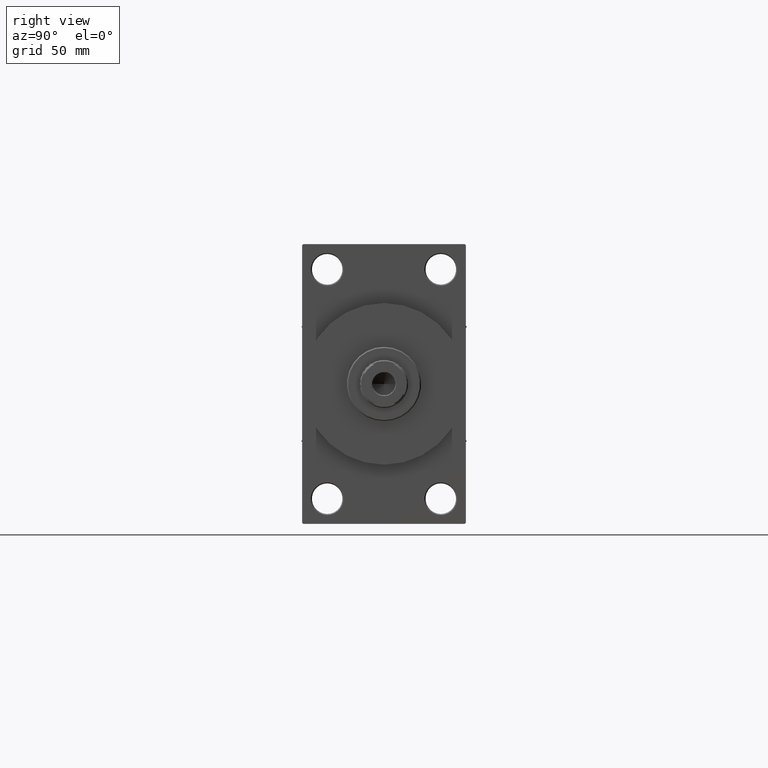
[diagram: clean part render]
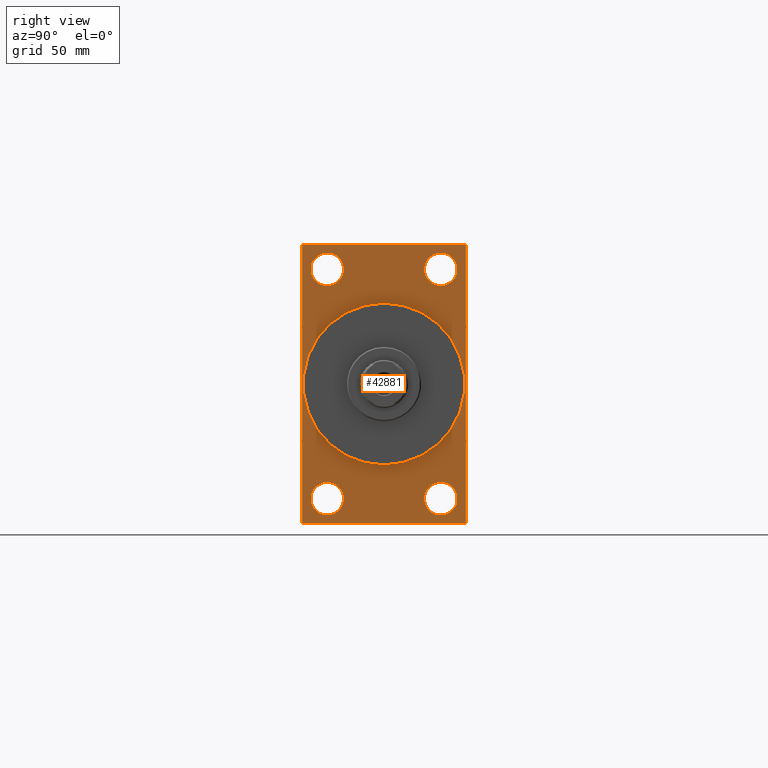
[diagram: same view with one face highlighted and labeled with its STEP entity id]
A machine part, right view. The second image highlights one B-rep face of the part: STEP entity #42881.
In plain terms, the highlighted planar face has unit normal (-1, 0, 0).
Its self-contained STEP definition (entity closure, byte-faithful):
#51 = EDGE_CURVE ( 'NONE', #14490, #13861, #46115, .T. ) ;
#133 = FACE_BOUND ( 'NONE', #13777, .T. ) ;
#326 = DIRECTION ( 'NONE',  ( 1.000000000000000000, 0.000000000000000000, 0.000000000000000000 ) ) ;
#359 = ORIENTED_EDGE ( 'NONE', *, *, #44602, .F. ) ;
#935 = EDGE_CURVE ( 'NONE', #15103, #45445, #27788, .T. ) ;
#1956 = ORIENTED_EDGE ( 'NONE', *, *, #15216, .T. ) ;
#2015 = VECTOR ( 'NONE', #3813, 1000.000000000000000 ) ;
#2135 = ORIENTED_EDGE ( 'NONE', *, *, #32947, .T. ) ;
#2440 = CARTESIAN_POINT ( 'NONE',  ( 243.0000000000000000, 26.00000000000000000, -52.49999999999999289 ) ) ;
#2674 = DIRECTION ( 'NONE',  ( -1.000000000000000000, 0.000000000000000000, -0.000000000000000000 ) ) ;
#2956 = CARTESIAN_POINT ( 'NONE',  ( 243.0000000000000000, 37.49999999999999289, -64.00000000000000000 ) ) ;
#3732 = ORIENTED_EDGE ( 'NONE', *, *, #10336, .F. ) ;
#3739 = CARTESIAN_POINT ( 'NONE',  ( 243.0000000000000000, 37.00000000000000000, 63.99999999999998579 ) ) ;
#3813 = DIRECTION ( 'NONE',  ( 0.000000000000000000, 0.000000000000000000, -1.000000000000000000 ) ) ;
#3825 = EDGE_CURVE ( 'NONE', #42680, #14490, #9779, .T. ) ;
#3919 = CARTESIAN_POINT ( 'NONE',  ( 243.0000000000000000, 37.49999999999999289, -63.50000000000007105 ) ) ;
#4246 = CIRCLE ( 'NONE', #30941, 7.500000000000034639 ) ;
#5391 = CARTESIAN_POINT ( 'NONE',  ( 243.0000000000000000, -37.49999999999999289, -63.50000000000002842 ) ) ;
#6480 = CARTESIAN_POINT ( 'NONE',  ( 243.0000000000000000, 26.00000000000000000, -52.49999999999999289 ) ) ;
#6494 = ORIENTED_EDGE ( 'NONE', *, *, #7635, .T. ) ;
#6590 = EDGE_CURVE ( 'NONE', #24454, #16930, #9531, .T. ) ;
#6607 = EDGE_LOOP ( 'NONE', ( #30966, #6494 ) ) ;
#6870 = ORIENTED_EDGE ( 'NONE', *, *, #26192, .T. ) ;
#7470 = VERTEX_POINT ( 'NONE', #35720 ) ;
#7474 = DIRECTION ( 'NONE',  ( -0.000000000000000000, 0.7071067811865574537, 0.7071067811865376918 ) ) ;
#7566 = DIRECTION ( 'NONE',  ( 0.000000000000000000, 0.000000000000000000, 1.000000000000000000 ) ) ;
#7635 = EDGE_CURVE ( 'NONE', #30785, #7470, #4246, .T. ) ;
#7802 = ORIENTED_EDGE ( 'NONE', *, *, #21730, .T. ) ;
#7828 = CARTESIAN_POINT ( 'NONE',  ( 243.0000000000000000, 0.000000000000000000, 0.000000000000000000 ) ) ;
#9106 = CARTESIAN_POINT ( 'NONE',  ( 243.0000000000000000, 26.00000000000000000, 52.49999999999999289 ) ) ;
#9319 = DIRECTION ( 'NONE',  ( -0.000000000000000000, -0.7071067811865524577, -0.7071067811865426878 ) ) ;
#9469 = EDGE_LOOP ( 'NONE', ( #19473, #40605 ) ) ;
#9531 = LINE ( 'NONE', #3739, #37838 ) ;
#9779 = LINE ( 'NONE', #24351, #2015 ) ;
#9817 = DIRECTION ( 'NONE',  ( 0.000000000000000000, 0.000000000000000000, 1.000000000000000000 ) ) ;
#10071 = CARTESIAN_POINT ( 'NONE',  ( 243.0000000000000000, -25.99999999999999645, -44.99999999999995737 ) ) ;
#10336 = EDGE_CURVE ( 'NONE', #24454, #44933, #33552, .T. ) ;
#10965 = VERTEX_POINT ( 'NONE', #29605 ) ;
#11086 = FACE_BOUND ( 'NONE', #18461, .T. ) ;
#11322 = DIRECTION ( 'NONE',  ( 0.000000000000000000, -5.421010862427522170E-17, -1.000000000000000000 ) ) ;
#11372 = DIRECTION ( 'NONE',  ( 0.000000000000000000, 0.000000000000000000, 1.000000000000000000 ) ) ;
#11603 = CIRCLE ( 'NONE', #38318, 7.500000000000034639 ) ;
#12302 = CARTESIAN_POINT ( 'NONE',  ( 243.0000000000000000, 37.50000000000000000, 63.49999999999998579 ) ) ;
#12527 = VERTEX_POINT ( 'NONE', #40254 ) ;
#12809 = AXIS2_PLACEMENT_3D ( 'NONE', #40776, #40299, #7566 ) ;
#12932 = EDGE_CURVE ( 'NONE', #29987, #43208, #27300, .T. ) ;
#13628 = DIRECTION ( 'NONE',  ( 0.000000000000000000, 0.000000000000000000, 1.000000000000000000 ) ) ;
#13777 = EDGE_LOOP ( 'NONE', ( #15449, #24835 ) ) ;
#13861 = VERTEX_POINT ( 'NONE', #43985 ) ;
#13865 = DIRECTION ( 'NONE',  ( 0.000000000000000000, 0.7071067811865376918, -0.7071067811865573427 ) ) ;
#14490 = VERTEX_POINT ( 'NONE', #5391 ) ;
#14673 = AXIS2_PLACEMENT_3D ( 'NONE', #9106, #34665, #13628 ) ;
#15103 = VERTEX_POINT ( 'NONE', #19847 ) ;
#15216 = EDGE_CURVE ( 'NONE', #32592, #42680, #31295, .T. ) ;
#15252 = DIRECTION ( 'NONE',  ( 0.000000000000000000, 0.000000000000000000, -1.000000000000000000 ) ) ;
#15449 = ORIENTED_EDGE ( 'NONE', *, *, #41729, .T. ) ;
#15743 = LINE ( 'NONE', #25535, #28489 ) ;
#15881 = CARTESIAN_POINT ( 'NONE',  ( 243.0000000000000000, 26.00000000000000000, 52.49999999999999289 ) ) ;
#15889 = VERTEX_POINT ( 'NONE', #10071 ) ;
#16106 = CARTESIAN_POINT ( 'NONE',  ( 243.0000000000000000, 0.000000000000000000, 0.000000000000000000 ) ) ;
#16251 = AXIS2_PLACEMENT_3D ( 'NONE', #2440, #20815, #32035 ) ;
#16507 = CARTESIAN_POINT ( 'NONE',  ( 243.0000000000000000, -37.49999999999999289, 63.50000000000000000 ) ) ;
#16930 = VERTEX_POINT ( 'NONE', #33597 ) ;
#17449 = ORIENTED_EDGE ( 'NONE', *, *, #935, .F. ) ;
#17842 = AXIS2_PLACEMENT_3D ( 'NONE', #38128, #19265, #37653 ) ;
#17994 = DIRECTION ( 'NONE',  ( 0.000000000000000000, -1.000000000000000000, -1.850371707708594563E-16 ) ) ;
#18028 = CARTESIAN_POINT ( 'NONE',  ( 243.0000000000000000, -37.00000000000001421, 63.99999999999997158 ) ) ;
#18459 = CARTESIAN_POINT ( 'NONE',  ( 243.0000000000000000, 0.000000000000000000, 0.000000000000000000 ) ) ;
#18461 = EDGE_LOOP ( 'NONE', ( #17449, #46363 ) ) ;
#18961 = AXIS2_PLACEMENT_3D ( 'NONE', #16106, #41665, #26127 ) ;
#19265 = DIRECTION ( 'NONE',  ( -1.000000000000000000, 0.000000000000000000, -0.000000000000000000 ) ) ;
#19473 = ORIENTED_EDGE ( 'NONE', *, *, #28006, .T. ) ;
#19625 = EDGE_CURVE ( 'NONE', #28541, #25300, #25994, .T. ) ;
#19847 = CARTESIAN_POINT ( 'NONE',  ( 243.0000000000000000, 0.000000000000000000, 37.00000000000000000 ) ) ;
#20815 = DIRECTION ( 'NONE',  ( -1.000000000000000000, 0.000000000000000000, -0.000000000000000000 ) ) ;
#21099 = LINE ( 'NONE', #2956, #44186 ) ;
#21108 = CARTESIAN_POINT ( 'NONE',  ( 243.0000000000000000, 4.531193156845206793E-15, -37.00000000000000000 ) ) ;
#21730 = EDGE_CURVE ( 'NONE', #10965, #44933, #40213, .T. ) ;
#22740 = CIRCLE ( 'NONE', #37329, 7.500000000000034639 ) ;
#22817 = DIRECTION ( 'NONE',  ( -1.000000000000000000, 0.000000000000000000, -0.000000000000000000 ) ) ;
#22911 = VECTOR ( 'NONE', #7474, 999.9999999999998863 ) ;
#24351 = CARTESIAN_POINT ( 'NONE',  ( 243.0000000000000000, -37.49999999999999289, 63.99999999999997158 ) ) ;
#24454 = VERTEX_POINT ( 'NONE', #12302 ) ;
#24551 = CIRCLE ( 'NONE', #45164, 37.00000000000000000 ) ;
#24835 = ORIENTED_EDGE ( 'NONE', *, *, #33108, .T. ) ;
#25300 = VERTEX_POINT ( 'NONE', #26219 ) ;
#25312 = EDGE_CURVE ( 'NONE', #45445, #15103, #24551, .T. ) ;
#25527 = CARTESIAN_POINT ( 'NONE',  ( 243.0000000000000000, -25.99999999999999645, 52.50000000000000000 ) ) ;
#25535 = CARTESIAN_POINT ( 'NONE',  ( 243.0000000000000000, 37.50000000000000000, 63.99999999999998579 ) ) ;
#25897 = CARTESIAN_POINT ( 'NONE',  ( 243.0000000000000000, 37.50000000000000000, 63.99999999999998579 ) ) ;
#25994 = CIRCLE ( 'NONE', #32103, 7.500000000000034639 ) ;
#26127 = DIRECTION ( 'NONE',  ( -0.000000000000000000, 0.000000000000000000, 1.000000000000000000 ) ) ;
#26192 = EDGE_CURVE ( 'NONE', #43208, #29987, #11603, .T. ) ;
#26219 = CARTESIAN_POINT ( 'NONE',  ( 243.0000000000000000, 26.00000000000000000, -60.00000000000002842 ) ) ;
#27093 = DIRECTION ( 'NONE',  ( 0.000000000000000000, 0.000000000000000000, 1.000000000000000000 ) ) ;
#27270 = EDGE_CURVE ( 'NONE', #7470, #30785, #39835, .T. ) ;
#27300 = CIRCLE ( 'NONE', #12809, 7.500000000000034639 ) ;
#27788 = CIRCLE ( 'NONE', #41552, 37.00000000000000000 ) ;
#28006 = EDGE_CURVE ( 'NONE', #25300, #28541, #33795, .T. ) ;
#28176 = CARTESIAN_POINT ( 'NONE',  ( 243.0000000000000000, -25.99999999999999645, 60.00000000000003553 ) ) ;
#28409 = ORIENTED_EDGE ( 'NONE', *, *, #3825, .T. ) ;
#28489 = VECTOR ( 'NONE', #40826, 1000.000000000000000 ) ;
#28531 = FACE_BOUND ( 'NONE', #38375, .T. ) ;
#28541 = VERTEX_POINT ( 'NONE', #34102 ) ;
#28561 = EDGE_LOOP ( 'NONE', ( #28409, #45197, #359, #7802, #3732, #29003, #2135, #1956 ) ) ;
#28635 = DIRECTION ( 'NONE',  ( -1.000000000000000000, 0.000000000000000000, -0.000000000000000000 ) ) ;
#28884 = VECTOR ( 'NONE', #9319, 1000.000000000000000 ) ;
#29003 = ORIENTED_EDGE ( 'NONE', *, *, #6590, .T. ) ;
#29239 = FACE_BOUND ( 'NONE', #9469, .T. ) ;
#29605 = CARTESIAN_POINT ( 'NONE',  ( 243.0000000000000000, 37.00000000000004974, -64.00000000000000000 ) ) ;
#29987 = VERTEX_POINT ( 'NONE', #28176 ) ;
#30276 = VECTOR ( 'NONE', #11322, 1000.000000000000000 ) ;
#30785 = VERTEX_POINT ( 'NONE', #35648 ) ;
#30941 = AXIS2_PLACEMENT_3D ( 'NONE', #15881, #22817, #27093 ) ;
#30966 = ORIENTED_EDGE ( 'NONE', *, *, #27270, .T. ) ;
#31295 = LINE ( 'NONE', #16507, #28884 ) ;
#32035 = DIRECTION ( 'NONE',  ( 0.000000000000000000, 0.000000000000000000, 1.000000000000000000 ) ) ;
#32103 = AXIS2_PLACEMENT_3D ( 'NONE', #6480, #2674, #9817 ) ;
#32465 = DIRECTION ( 'NONE',  ( 0.000000000000000000, 0.000000000000000000, 1.000000000000000000 ) ) ;
#32592 = VERTEX_POINT ( 'NONE', #18028 ) ;
#32644 = CARTESIAN_POINT ( 'NONE',  ( 243.0000000000000000, -25.99999999999999645, -52.49999999999999289 ) ) ;
#32947 = EDGE_CURVE ( 'NONE', #16930, #32592, #15743, .T. ) ;
#33108 = EDGE_CURVE ( 'NONE', #15889, #12527, #45289, .T. ) ;
#33401 = DIRECTION ( 'NONE',  ( 1.000000000000000000, 0.000000000000000000, 0.000000000000000000 ) ) ;
#33552 = LINE ( 'NONE', #25897, #30276 ) ;
#33597 = CARTESIAN_POINT ( 'NONE',  ( 243.0000000000000000, 37.00000000000000000, 63.99999999999998579 ) ) ;
#33737 = DIRECTION ( 'NONE',  ( 0.000000000000000000, 0.000000000000000000, -1.000000000000000000 ) ) ;
#33795 = CIRCLE ( 'NONE', #16251, 7.500000000000034639 ) ;
#34102 = CARTESIAN_POINT ( 'NONE',  ( 243.0000000000000000, 26.00000000000000000, -44.99999999999995737 ) ) ;
#34665 = DIRECTION ( 'NONE',  ( -1.000000000000000000, 0.000000000000000000, -0.000000000000000000 ) ) ;
#35648 = CARTESIAN_POINT ( 'NONE',  ( 243.0000000000000000, 26.00000000000000000, 60.00000000000002842 ) ) ;
#35720 = CARTESIAN_POINT ( 'NONE',  ( 243.0000000000000000, 26.00000000000000000, 44.99999999999995737 ) ) ;
#36226 = DIRECTION ( 'NONE',  ( -1.000000000000000000, 0.000000000000000000, -0.000000000000000000 ) ) ;
#37329 = AXIS2_PLACEMENT_3D ( 'NONE', #32644, #36226, #11372 ) ;
#37363 = FACE_OUTER_BOUND ( 'NONE', #28561, .T. ) ;
#37653 = DIRECTION ( 'NONE',  ( 0.000000000000000000, 0.000000000000000000, 1.000000000000000000 ) ) ;
#37838 = VECTOR ( 'NONE', #46075, 1000.000000000000114 ) ;
#38081 = CARTESIAN_POINT ( 'NONE',  ( 243.0000000000000000, -37.00000000000002132, -64.00000000000001421 ) ) ;
#38128 = CARTESIAN_POINT ( 'NONE',  ( 243.0000000000000000, -25.99999999999999645, -52.49999999999999289 ) ) ;
#38131 = CARTESIAN_POINT ( 'NONE',  ( 243.0000000000000000, -37.49999999999999289, 63.50000000000000000 ) ) ;
#38318 = AXIS2_PLACEMENT_3D ( 'NONE', #25527, #28635, #32465 ) ;
#38375 = EDGE_LOOP ( 'NONE', ( #6870, #43706 ) ) ;
#39835 = CIRCLE ( 'NONE', #14673, 7.500000000000034639 ) ;
#40213 = LINE ( 'NONE', #3919, #22911 ) ;
#40254 = CARTESIAN_POINT ( 'NONE',  ( 243.0000000000000000, -25.99999999999999645, -60.00000000000002842 ) ) ;
#40299 = DIRECTION ( 'NONE',  ( -1.000000000000000000, 0.000000000000000000, -0.000000000000000000 ) ) ;
#40605 = ORIENTED_EDGE ( 'NONE', *, *, #19625, .T. ) ;
#40776 = CARTESIAN_POINT ( 'NONE',  ( 243.0000000000000000, -25.99999999999999645, 52.50000000000000000 ) ) ;
#40826 = DIRECTION ( 'NONE',  ( 0.000000000000000000, -1.000000000000000000, -1.850371707708594563E-16 ) ) ;
#41187 = PLANE ( 'NONE',  #18961 ) ;
#41552 = AXIS2_PLACEMENT_3D ( 'NONE', #18459, #326, #33737 ) ;
#41665 = DIRECTION ( 'NONE',  ( -1.000000000000000000, 0.000000000000000000, -0.000000000000000000 ) ) ;
#41729 = EDGE_CURVE ( 'NONE', #12527, #15889, #22740, .T. ) ;
#42680 = VERTEX_POINT ( 'NONE', #38131 ) ;
#42881 = ADVANCED_FACE ( 'NONE', ( #28531, #133, #29239, #43821, #11086, #37363 ), #41187, .F. ) ;
#43208 = VERTEX_POINT ( 'NONE', #43762 ) ;
#43706 = ORIENTED_EDGE ( 'NONE', *, *, #12932, .T. ) ;
#43762 = CARTESIAN_POINT ( 'NONE',  ( 243.0000000000000000, -25.99999999999999645, 44.99999999999996447 ) ) ;
#43792 = VECTOR ( 'NONE', #13865, 1000.000000000000114 ) ;
#43821 = FACE_BOUND ( 'NONE', #6607, .T. ) ;
#43985 = CARTESIAN_POINT ( 'NONE',  ( 243.0000000000000000, -37.00000000000002132, -64.00000000000001421 ) ) ;
#44186 = VECTOR ( 'NONE', #17994, 1000.000000000000000 ) ;
#44602 = EDGE_CURVE ( 'NONE', #10965, #13861, #21099, .T. ) ;
#44900 = CARTESIAN_POINT ( 'NONE',  ( 243.0000000000000000, 37.49999999999999289, -63.50000000000007105 ) ) ;
#44933 = VERTEX_POINT ( 'NONE', #44900 ) ;
#45164 = AXIS2_PLACEMENT_3D ( 'NONE', #7828, #33401, #15252 ) ;
#45197 = ORIENTED_EDGE ( 'NONE', *, *, #51, .T. ) ;
#45289 = CIRCLE ( 'NONE', #17842, 7.500000000000034639 ) ;
#45445 = VERTEX_POINT ( 'NONE', #21108 ) ;
#46075 = DIRECTION ( 'NONE',  ( 0.000000000000000000, -0.7071067811865474617, 0.7071067811865474617 ) ) ;
#46115 = LINE ( 'NONE', #38081, #43792 ) ;
#46363 = ORIENTED_EDGE ( 'NONE', *, *, #25312, .F. ) ;